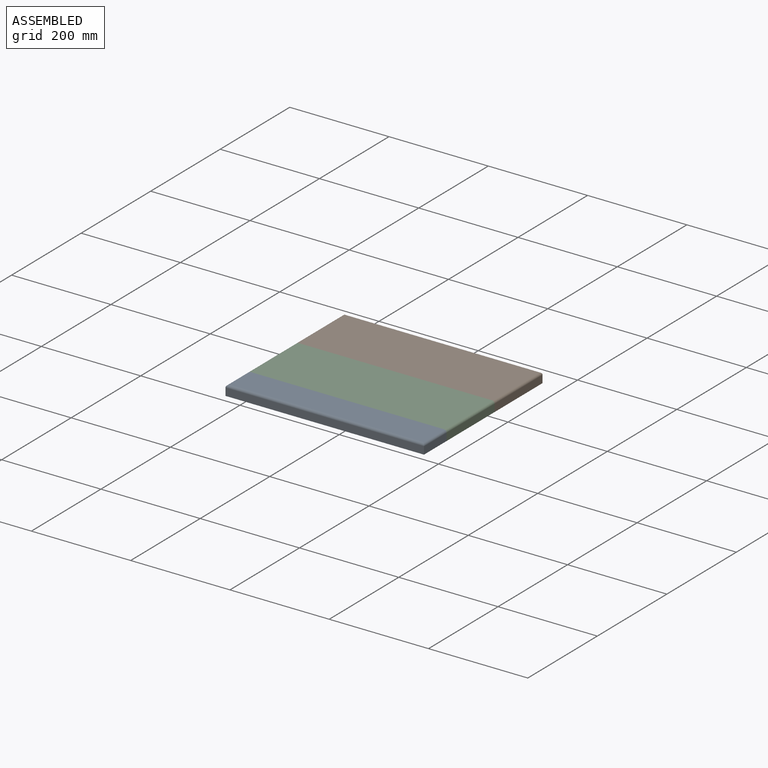
[diagram: assembled view]
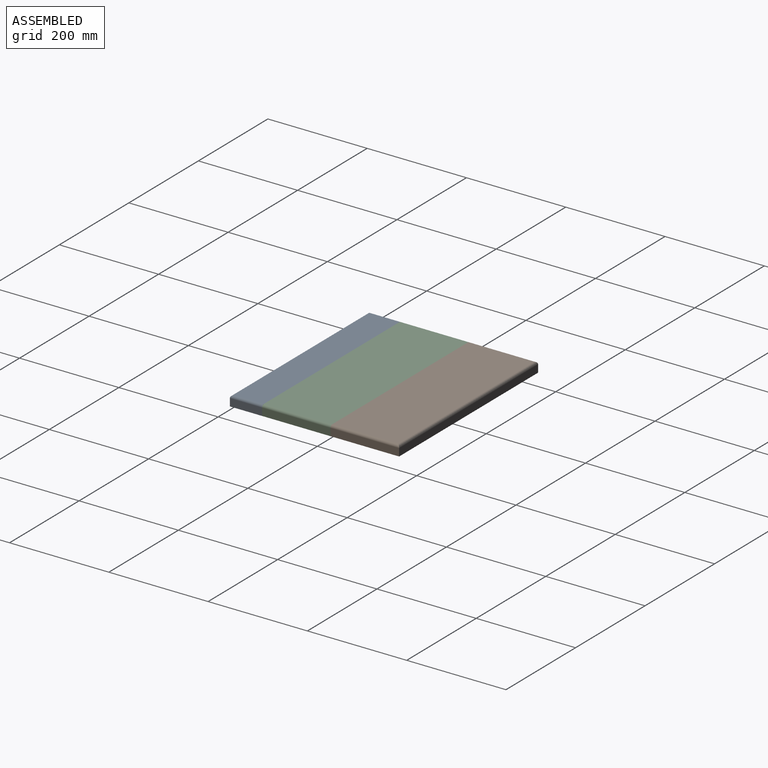
[diagram: assembled view, second angle]
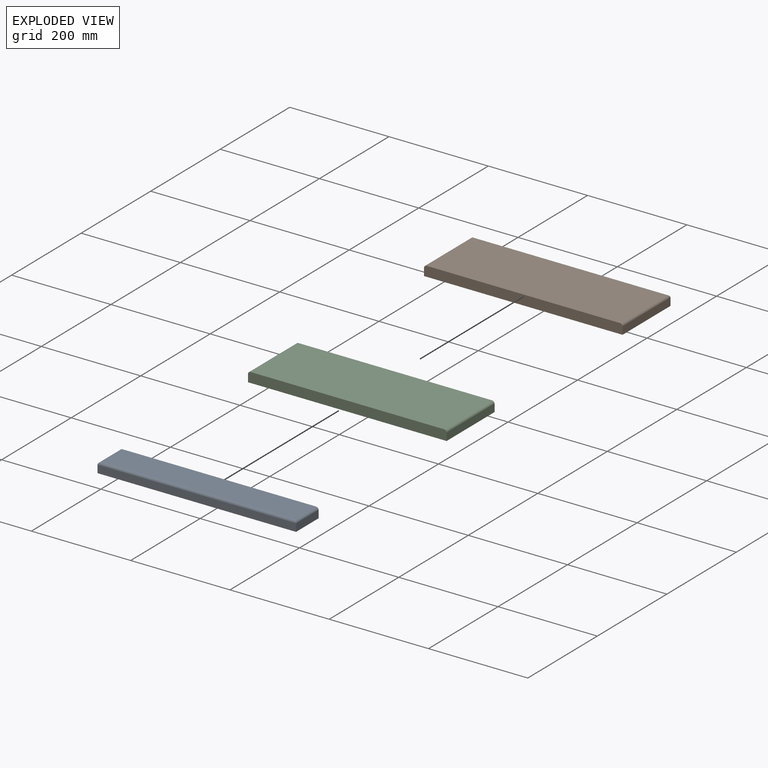
[diagram: exploded view]
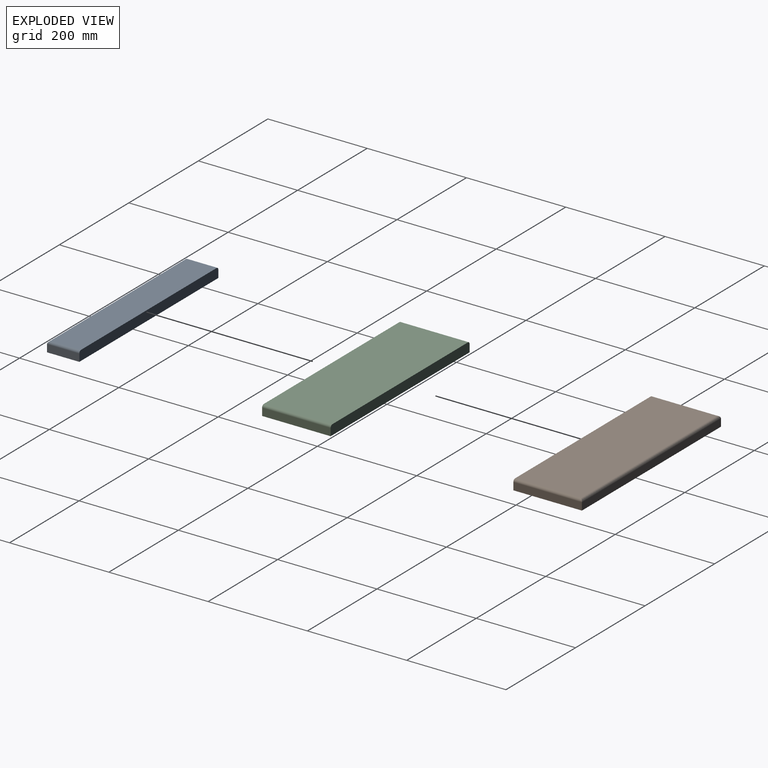
[diagram: exploded view, second angle]
ASSEMBLY  parts=3 mates=2
PART A: 9 faces, bbox 400x65x20 mm
  f0: plane 400x20mm, normal (0,1,0), area 7989.3mm2, adj f1,f3,f4,f5,f6,f7
  f1: plane 65x15mm, normal (-1,0,0), area 975mm2, adj f0,f2,f5,f6
  f2: plane 400x15mm, normal (0,-1,0), area 6000mm2, adj f1,f3,f5,f8
  f3: plane 65x15mm, normal (1,0,0), area 975mm2, adj f0,f2,f5,f7
  f4: plane 390x60mm, normal (0,0,1), area 23400mm2, adj f0,f6,f7,f8
  f5: plane 400x65mm, normal (0,0,-1), area 26000mm2, adj f0,f1,f2,f3
  f6: cylinder r=5mm len=65mm, axis (0,1,0), area 496.2mm2, adj f0,f1,f4,f8
  f7: cylinder r=5mm len=65mm, axis (0,-1,0), area 496.2mm2, adj f0,f3,f4,f8
  f8: cylinder r=5mm len=400mm, axis (-1,0,0), area 3113.1mm2, adj f2,f4,f6,f7
PART B: 9 faces, bbox 400x138x20 mm
  f0: plane 400x15mm, normal (0,1,0), area 6000mm2, adj f1,f3,f5,f7
  f1: plane 138x15mm, normal (-1,0,0), area 2070mm2, adj f0,f2,f5,f8
  f2: plane 400x20mm, normal (0,-1,0), area 7989.3mm2, adj f1,f3,f4,f5,f6,f8
  f3: plane 138x15mm, normal (1,0,0), area 2070mm2, adj f0,f2,f5,f6
  f4: plane 390x133mm, normal (0,0,1), area 51870mm2, adj f2,f6,f7,f8
  f5: plane 400x138mm, normal (0,0,-1), area 55200mm2, adj f0,f1,f2,f3
  f6: cylinder r=5mm len=138mm, axis (0,-1,0), area 1069.6mm2, adj f2,f3,f4,f7
  f7: cylinder r=5mm len=400mm, axis (1,0,0), area 3113.1mm2, adj f0,f4,f6,f8
  f8: cylinder r=5mm len=138mm, axis (0,1,0), area 1069.6mm2, adj f1,f2,f4,f7
PART C: 8 faces, bbox 400x138x20 mm
  f0: plane 400x20mm, normal (0,1,0), area 7989.3mm2, adj f1,f3,f4,f5,f6,f7
  f1: plane 138x15mm, normal (-1,0,0), area 2070mm2, adj f0,f2,f5,f6
  f2: plane 400x20mm, normal (0,-1,0), area 7989.3mm2, adj f1,f3,f4,f5,f6,f7
  f3: plane 138x15mm, normal (1,0,0), area 2070mm2, adj f0,f2,f5,f7
  f4: plane 390x138mm, normal (0,0,1), area 53820mm2, adj f0,f2,f6,f7
  f5: plane 400x138mm, normal (0,0,-1), area 55200mm2, adj f0,f1,f2,f3
  f6: cylinder r=5mm len=138mm, axis (0,1,0), area 1083.8mm2, adj f0,f1,f2,f4
  f7: cylinder r=5mm len=138mm, axis (0,-1,0), area 1083.8mm2, adj f0,f2,f3,f4
PLACE A t=(-33.03,66.05,66.04)mm
PLACE B t=(-30.69,5.19,66.04)mm
PLACE C t=(-35.02,34.95,66.04)mm
MATE fastened C.f2 <-> A.f0  axis (0,-1,0) through (-230.69,-132.81,76.03)mm
MATE fastened B.f2 <-> C.f0  axis (0,-1,0) through (-230.69,5.19,76.03)mm
